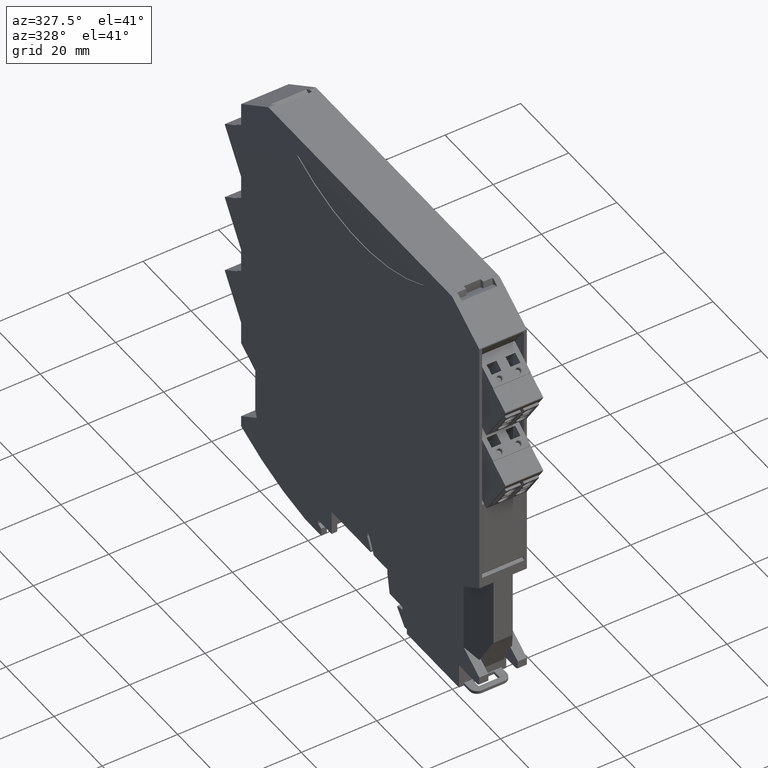
[diagram: clean part render]
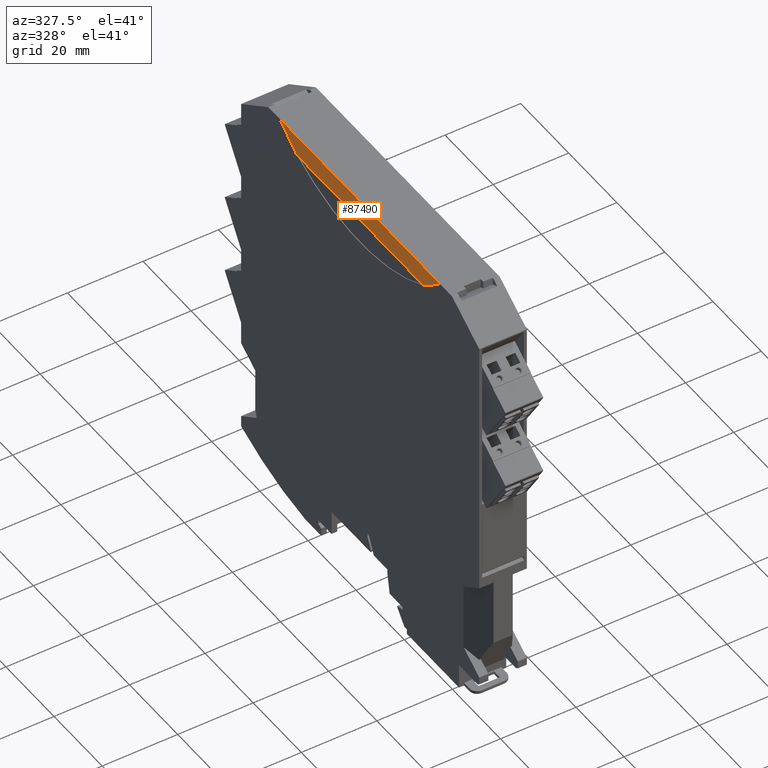
[diagram: same view with one face highlighted and labeled with its STEP entity id]
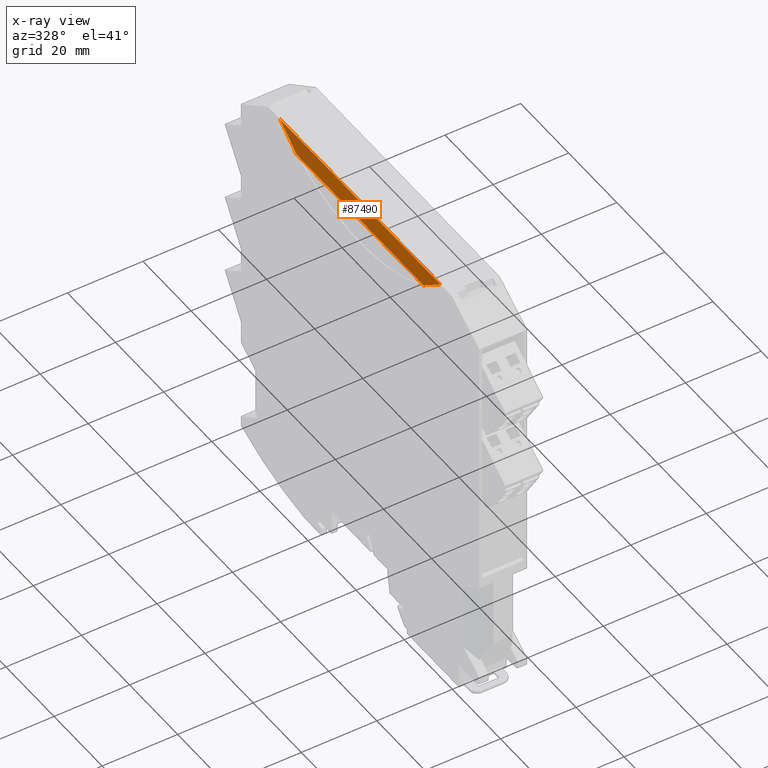
[diagram: x-ray of the same camera — body ghosted, the highlighted face saturated]
A machine part, auxiliary view. The second image highlights one B-rep face of the part: STEP entity #87490.
The next image is the same camera in x-ray: the body ghosted, the highlighted face saturated — about 0% of this face is hidden behind the body in this view.
In plain terms, the highlighted planar face has unit normal (-1, -0, 0).
Its self-contained STEP definition (entity closure, byte-faithful):
#85570=CARTESIAN_POINT('',(6.95088431257318E-12,23.1552602197064,
108.249999999997));
#85580=VERTEX_POINT('',#85570);
#85730=CARTESIAN_POINT('',(-4.41442438159356E-11,75.84995000027,
108.249999999994));
#85740=VERTEX_POINT('',#85730);
#85770=CARTESIAN_POINT('',(-1.85931270380024E-11,49.5000000003095,
108.249999999996));
#85780=DIRECTION('',(-9.69667423635606E-13,1.,-4.97572203083267E-14));
#85790=VECTOR('',#85780,1.);
#85800=LINE('',#85770,#85790);
#85810=EDGE_CURVE('',#85580,#85740,#85800,.T.);
#87190=CARTESIAN_POINT('',(-3.48290285501207E-11,66.2429808549896,
62.5853414744637));
#87200=DIRECTION('',(-1.,-9.69667423635606E-13,2.21456382961011E-30));
#87210=DIRECTION('',(9.69667423635606E-13,-1.,2.28383853642001E-18));
#87220=AXIS2_PLACEMENT_3D('',#87190,#87200,#87210);
#87230=PLANE('',#87220);
#87240=CARTESIAN_POINT('',(-1.85931270380024E-11,49.5000000003095,
113.700000000006));
#87250=DIRECTION('',(-9.69667423635606E-13,1.,-4.678673467734E-13));
#87260=VECTOR('',#87250,1.);
#87270=LINE('',#87240,#87260);
#87280=CARTESIAN_POINT('',(1.37170275138487E-11,16.1795783242716,
113.700000000005));
#87290=VERTEX_POINT('',#87280);
#87300=CARTESIAN_POINT('',(-5.09086106603718E-11,82.8256318955935,
113.699999999883));
#87310=VERTEX_POINT('',#87300);
#87320=EDGE_CURVE('',#87290,#87310,#87270,.T.);
#87330=ORIENTED_EDGE('',*,*,#87320,.T.);
#87340=CARTESIAN_POINT('',(-1.85931270380024E-11,49.5000000003095,
87.6672334752699));
#87350=DIRECTION('',(-7.64112402769667E-13,0.788010753605531,
-0.615661475327183));
#87360=VECTOR('',#87350,1.);
#87370=LINE('',#87340,#87360);
#87380=EDGE_CURVE('',#87290,#85580,#87370,.T.);
#87390=ORIENTED_EDGE('',*,*,#87380,.F.);
#87400=ORIENTED_EDGE('',*,*,#85810,.F.);
#87410=CARTESIAN_POINT('',(-1.85931270380024E-11,49.5000000003095,
87.6631628058963));
#87420=DIRECTION('',(-7.64109590626861E-13,0.788010753607329,
0.615661475324882));
#87430=VECTOR('',#87420,1.);
#87440=LINE('',#87410,#87430);
#87450=EDGE_CURVE('',#85740,#87310,#87440,.T.);
#87460=ORIENTED_EDGE('',*,*,#87450,.F.);
#87470=EDGE_LOOP('',(#87460,#87400,#87390,#87330));
#87480=FACE_OUTER_BOUND('',#87470,.T.);
#87490=ADVANCED_FACE('',(#87480),#87230,.T.);